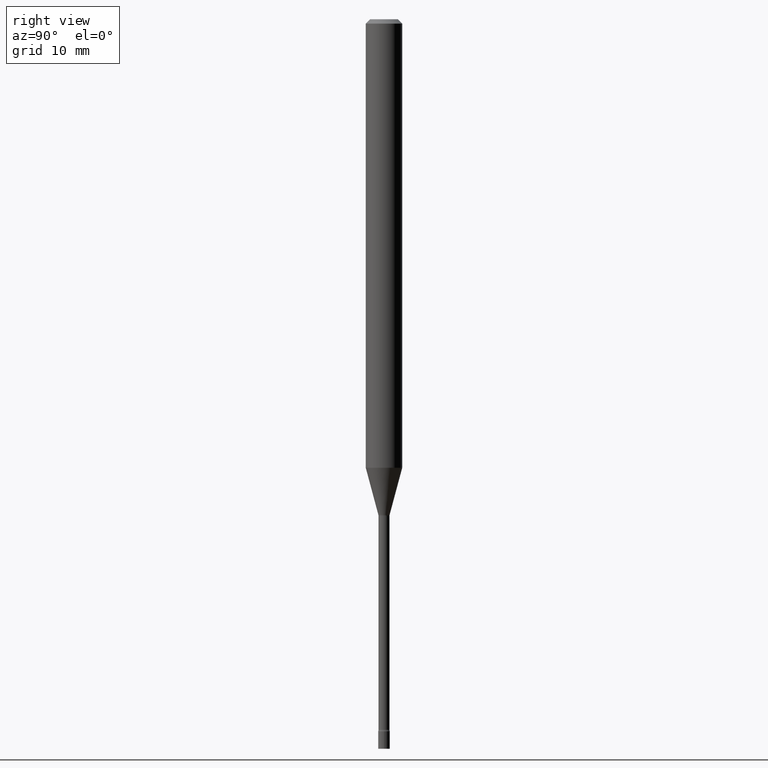
[diagram: clean part render]
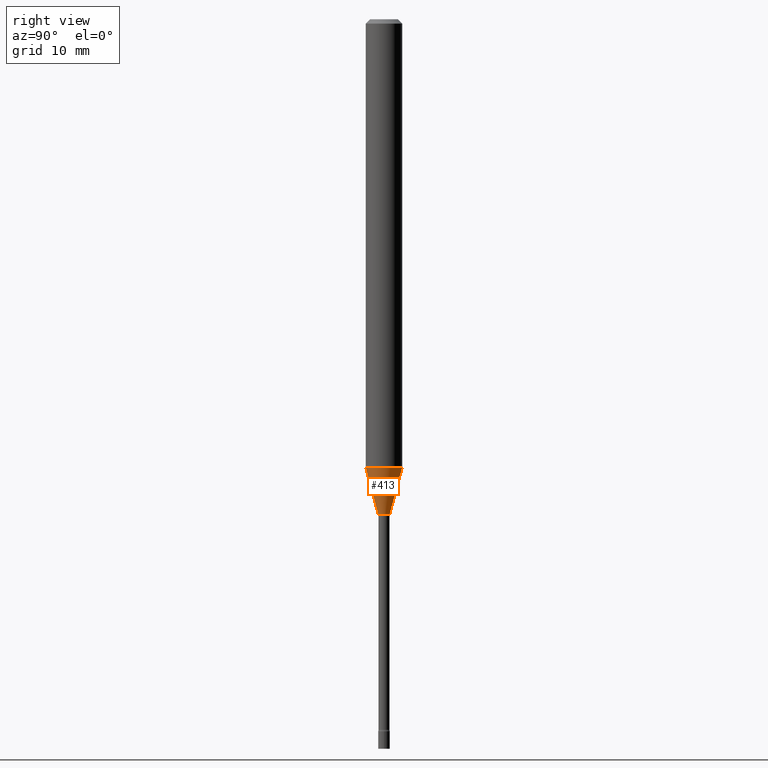
[diagram: same view with one face highlighted and labeled with its STEP entity id]
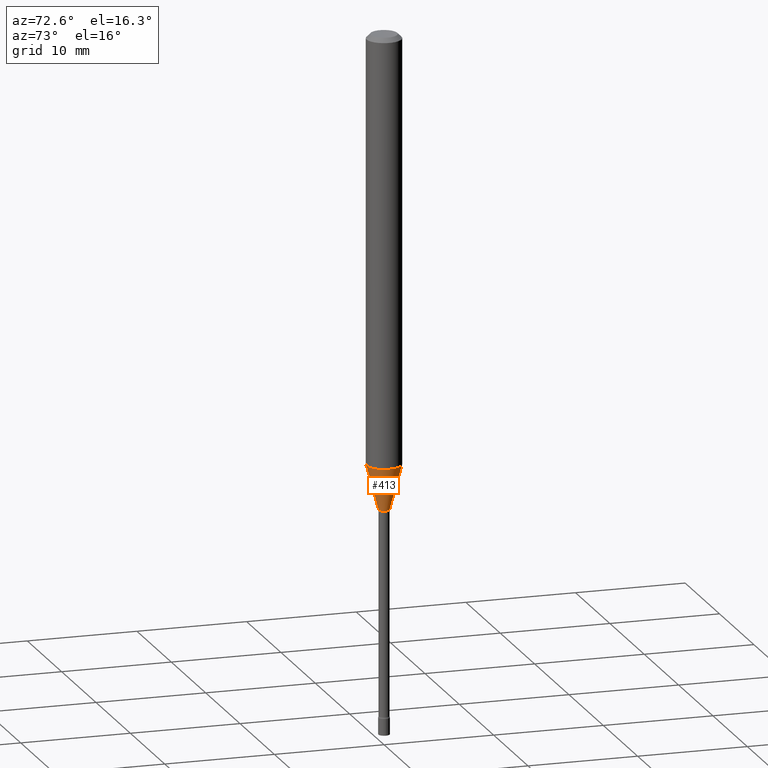
[diagram: same view with one face highlighted and labeled with its STEP entity id]
A machine part, right view. The second image highlights one B-rep face of the part: STEP entity #413.
A second angle (auxiliary view) of the same face is appended — the face is thin or edge-on in the first view.
In plain terms, the highlighted conical surface has half-angle 15 deg.
Its self-contained STEP definition (entity closure, byte-faithful):
#10 = DIRECTION ( 'NONE',  ( -2.445425091962523904E-29, 3.491543940097986004E-15, 1.000000000000000000 ) ) ;
#46 = EDGE_CURVE ( 'NONE', #159, #193, #212, .T. ) ;
#67 = EDGE_LOOP ( 'NONE', ( #317, #442, #459, #168 ) ) ;
#71 = AXIS2_PLACEMENT_3D ( 'NONE', #517, #116, #510 ) ;
#108 = LINE ( 'NONE', #515, #330 ) ;
#110 = CARTESIAN_POINT ( 'NONE',  ( -4.364351673553541492E-16, -0.06250000000000538458, -1.536909379709239909 ) ) ;
#116 = DIRECTION ( 'NONE',  ( -2.445425091962523904E-29, 3.491543940097986004E-15, 1.000000000000000000 ) ) ;
#119 = DIRECTION ( 'NONE',  ( -6.982962677686265922E-15, -1.000000000000000000, 0.000000000000000000 ) ) ;
#124 = CARTESIAN_POINT ( 'NONE',  ( 3.758396761213533964E-29, -5.366186631203552806E-15, -1.536909379709240131 ) ) ;
#145 = CARTESIAN_POINT ( 'NONE',  ( -1.348487785899068523E-16, -0.01931111260566991533, -1.698092501787273001 ) ) ;
#156 = DIRECTION ( 'NONE',  ( -2.445425091962523904E-29, 3.491543940097986004E-15, 1.000000000000000000 ) ) ;
#159 = VERTEX_POINT ( 'NONE', #145 ) ;
#164 = DIRECTION ( 'NONE',  ( -6.982962677686265922E-15, -1.000000000000000000, 4.370956789862821150E-15 ) ) ;
#168 = ORIENTED_EDGE ( 'NONE', *, *, #46, .F. ) ;
#193 = VERTEX_POINT ( 'NONE', #110 ) ;
#212 = LINE ( 'NONE', #296, #364 ) ;
#215 = EDGE_CURVE ( 'NONE', #159, #265, #503, .T. ) ;
#253 = EDGE_CURVE ( 'NONE', #265, #278, #108, .T. ) ;
#263 = DIRECTION ( 'NONE',  ( 1.839019923739597160E-15, 0.2588190451025245142, 0.9659258262890673130 ) ) ;
#265 = VERTEX_POINT ( 'NONE', #309 ) ;
#278 = VERTEX_POINT ( 'NONE', #396 ) ;
#279 = CIRCLE ( 'NONE', #384, 0.06250000000000000000 ) ;
#296 = CARTESIAN_POINT ( 'NONE',  ( -1.348487785899068523E-16, -0.01931111260566991533, -1.698092501787273001 ) ) ;
#309 = CARTESIAN_POINT ( 'NONE',  ( 2.906514588320701631E-16, 0.01931111260565805676, -1.698092501787273001 ) ) ;
#317 = ORIENTED_EDGE ( 'NONE', *, *, #215, .T. ) ;
#325 = CARTESIAN_POINT ( 'NONE',  ( 4.152558012344013964E-29, -5.928964584341181996E-15, -1.698092501787273001 ) ) ;
#330 = VECTOR ( 'NONE', #263, 39.37007874015748143 ) ;
#335 = DIRECTION ( 'NONE',  ( -1.807323732225326984E-15, -0.2588190451025177419, 0.9659258262890690894 ) ) ;
#336 = CONICAL_SURFACE ( 'NONE', #406, 0.01931111260566398605, 0.2617993877991497964 ) ;
#364 = VECTOR ( 'NONE', #335, 39.37007874015748143 ) ;
#384 = AXIS2_PLACEMENT_3D ( 'NONE', #124, #156, #164 ) ;
#396 = CARTESIAN_POINT ( 'NONE',  ( 4.440892098500999885E-16, 0.06249999999999461542, -1.536909379709240575 ) ) ;
#404 = FACE_OUTER_BOUND ( 'NONE', #67, .T. ) ;
#406 = AXIS2_PLACEMENT_3D ( 'NONE', #325, #10, #119 ) ;
#408 = EDGE_CURVE ( 'NONE', #193, #278, #279, .T. ) ;
#413 = ADVANCED_FACE ( 'NONE', ( #404 ), #336, .T. ) ;
#442 = ORIENTED_EDGE ( 'NONE', *, *, #253, .T. ) ;
#459 = ORIENTED_EDGE ( 'NONE', *, *, #408, .F. ) ;
#503 = CIRCLE ( 'NONE', #71, 0.01931111260566398605 ) ;
#510 = DIRECTION ( 'NONE',  ( -6.982962677686265922E-15, -1.000000000000000000, 0.000000000000000000 ) ) ;
#515 = CARTESIAN_POINT ( 'NONE',  ( 1.372137078140399433E-16, 0.01931111260565805676, -1.698092501787273001 ) ) ;
#517 = CARTESIAN_POINT ( 'NONE',  ( 4.152558012344013964E-29, -5.928964584341181996E-15, -1.698092501787273001 ) ) ;